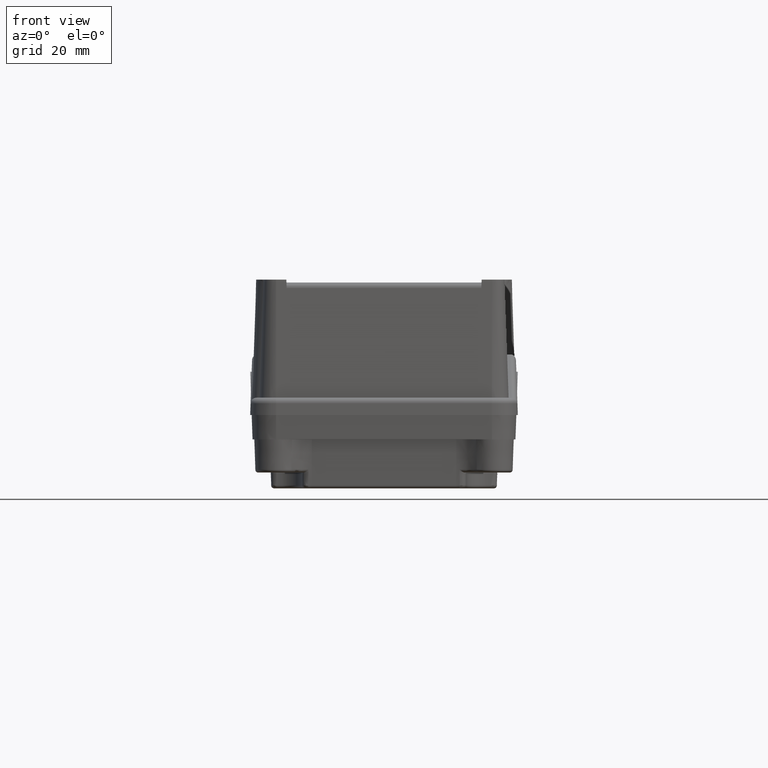
[diagram: clean part render]
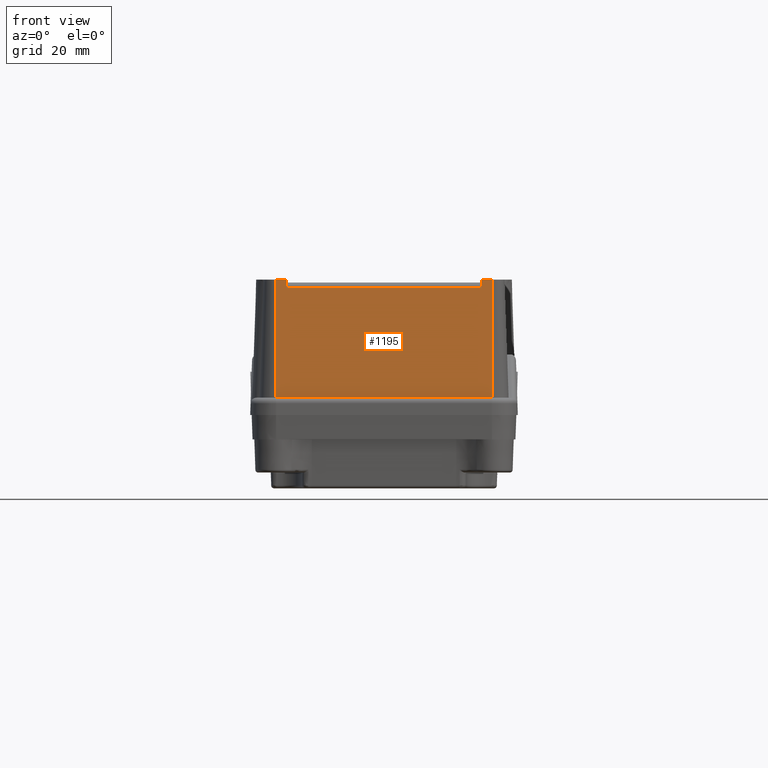
[diagram: same view with one face highlighted and labeled with its STEP entity id]
A machine part, front view. The second image highlights one B-rep face of the part: STEP entity #1195.
In plain terms, the highlighted planar face has unit normal (0, -0.9994, 0.0349).
Its self-contained STEP definition (entity closure, byte-faithful):
#1098=CARTESIAN_POINT('',(-2.441148936071174,-22.361461698367158,44.069798993405001));
#1099=VERTEX_POINT('',#1098);
#1107=CARTESIAN_POINT('',(65.211332061839954,-22.361461698367158,44.069798993405001));
#1108=VERTEX_POINT('',#1107);
#1109=CARTESIAN_POINT('',(-2.441148936071174,-22.361461698367158,44.069798993405001));
#1110=DIRECTION('',(1.0,0.0,0.0));
#1111=VECTOR('',#1110,67.652480997911127);
#1112=LINE('',#1109,#1111);
#1113=EDGE_CURVE('',#1099,#1108,#1112,.T.);
#1133=CARTESIAN_POINT('',(-6.114908437115658,-22.294057593943116,46.000000000000007));
#1134=DIRECTION('',(0.0,-0.999390827019096,0.034899496702501));
#1135=DIRECTION('',(-1.0,0.0,0.0));
#1136=AXIS2_PLACEMENT_3D('',#1133,#1134,#1135);
#1137=PLANE('',#1136);
#1138=CARTESIAN_POINT('',(65.313656935755745,-22.259136824451371,47.0));
#1139=VERTEX_POINT('',#1138);
#1140=CARTESIAN_POINT('',(65.211332061839954,-22.361461698367158,44.069798993405001));
#1141=DIRECTION('',(0.034878262742374,0.034878262742373,0.998782765958718));
#1142=VECTOR('',#1141,2.933772093857004);
#1143=LINE('',#1140,#1142);
#1144=EDGE_CURVE('',#1108,#1139,#1143,.T.);
#1145=ORIENTED_EDGE('',*,*,#1144,.F.);
#1146=ORIENTED_EDGE('',*,*,#1113,.F.);
#1147=CARTESIAN_POINT('',(-2.543473809986963,-22.259136824451371,47.0));
#1148=VERTEX_POINT('',#1147);
#1149=CARTESIAN_POINT('',(-2.441148936071174,-22.361461698367158,44.069798993405001));
#1150=DIRECTION('',(-0.034878262742374,0.034878262742373,0.998782765958718));
#1151=VECTOR('',#1150,2.933772093857004);
#1152=LINE('',#1149,#1151);
#1153=EDGE_CURVE('',#1099,#1148,#1152,.T.);
#1154=ORIENTED_EDGE('',*,*,#1153,.T.);
#1155=CARTESIAN_POINT('',(-6.114908437115658,-22.259136824451375,47.0));
#1156=VERTEX_POINT('',#1155);
#1157=CARTESIAN_POINT('',(-2.543473809986963,-22.259136824451371,47.0));
#1158=DIRECTION('',(-1.0,0.0,0.0));
#1159=VECTOR('',#1158,3.571434627128695);
#1160=LINE('',#1157,#1159);
#1161=EDGE_CURVE('',#1148,#1156,#1160,.T.);
#1162=ORIENTED_EDGE('',*,*,#1161,.T.);
#1163=CARTESIAN_POINT('',(-6.114908437115658,-23.690888373613028,6.000000000000005));
#1164=VERTEX_POINT('',#1163);
#1165=CARTESIAN_POINT('',(-6.114908437115658,-23.690888373613028,6.000000000000005));
#1166=DIRECTION('',(0.0,0.034899496702501,0.999390827019096));
#1167=VECTOR('',#1166,41.024991316251686);
#1168=LINE('',#1165,#1167);
#1169=EDGE_CURVE('',#1164,#1156,#1168,.T.);
#1170=ORIENTED_EDGE('',*,*,#1169,.F.);
#1171=CARTESIAN_POINT('',(68.885091562884426,-23.690888373613028,6.000000000000005));
#1172=VERTEX_POINT('',#1171);
#1173=CARTESIAN_POINT('',(-6.114908437115658,-23.690888373613028,6.000000000000005));
#1174=DIRECTION('',(1.0,0.0,0.0));
#1175=VECTOR('',#1174,75.000000000000085);
#1176=LINE('',#1173,#1175);
#1177=EDGE_CURVE('',#1164,#1172,#1176,.T.);
#1178=ORIENTED_EDGE('',*,*,#1177,.T.);
#1179=CARTESIAN_POINT('',(68.885091562884426,-22.259136824451371,47.0));
#1180=VERTEX_POINT('',#1179);
#1181=CARTESIAN_POINT('',(68.885091562884426,-23.690888373613028,6.000000000000005));
#1182=DIRECTION('',(0.0,0.034899496702501,0.999390827019096));
#1183=VECTOR('',#1182,41.024991316251686);
#1184=LINE('',#1181,#1183);
#1185=EDGE_CURVE('',#1172,#1180,#1184,.T.);
#1186=ORIENTED_EDGE('',*,*,#1185,.T.);
#1187=CARTESIAN_POINT('',(68.885091562884426,-22.259136824451371,47.0));
#1188=DIRECTION('',(-1.0,0.0,0.0));
#1189=VECTOR('',#1188,3.571434627128681);
#1190=LINE('',#1187,#1189);
#1191=EDGE_CURVE('',#1180,#1139,#1190,.T.);
#1192=ORIENTED_EDGE('',*,*,#1191,.T.);
#1193=EDGE_LOOP('',(#1145,#1146,#1154,#1162,#1170,#1178,#1186,#1192));
#1194=FACE_OUTER_BOUND('',#1193,.T.);
#1195=ADVANCED_FACE('',(#1194),#1137,.T.);